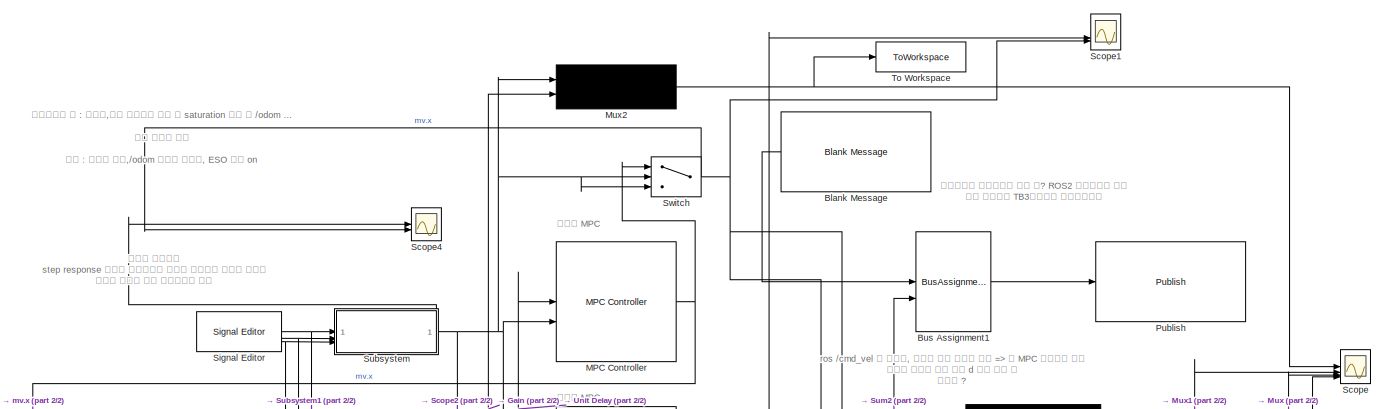
[diagram: root canvas - part 1/2, full width, top band]
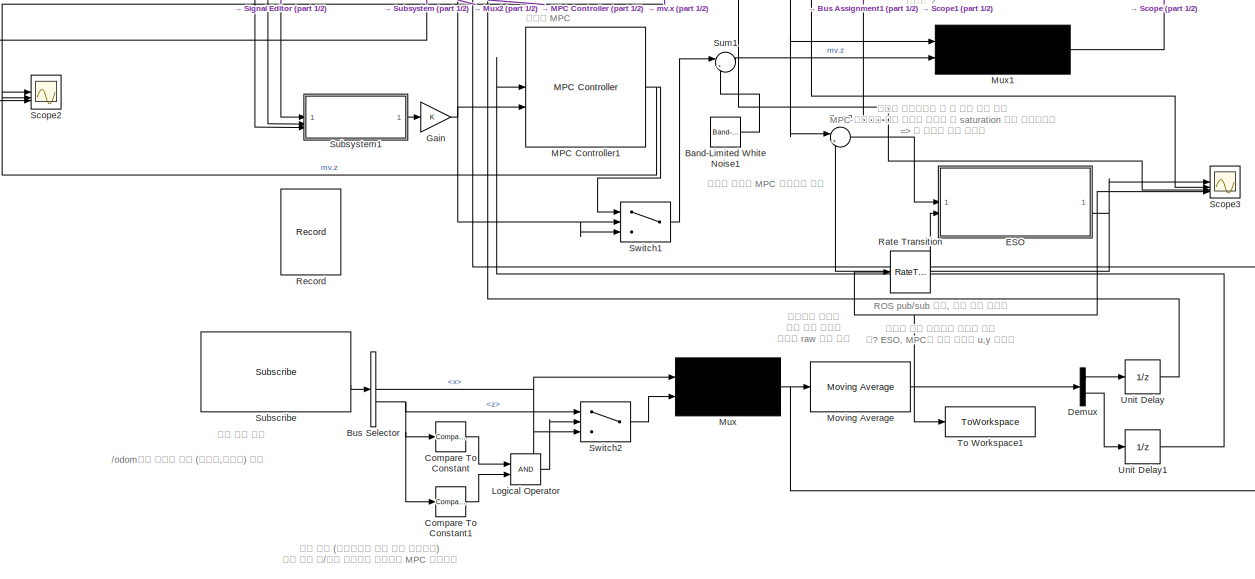
[diagram: root canvas - part 2/2, full width, bottom band]
MODEL slx_f93fa31c8e73
KIND model
CONFIG AbsTol = auto
CONFIG EnableMultiTasking = off
CONFIG FixedStep = auto
CONFIG MaxStep = auto
CONFIG MinStep = auto
CONFIG RelTol = 1e-3
CONFIG SampleTimeConstraint = Unconstrained
CONFIG SolverName = VariableStepAuto
CONFIG StartTime = 0.0
CONFIG StopTime = 45
BLOCK [Reference] Band-Limited White Noise1  REF=simulink/Sources/Band-Limited
White Noise
  SourceBlock = simulink/Sources/Band-Limited\nWhite Noise
  SourceType = Band-Limited White Noise.
BLOCK [Reference] Blank Message  REF=ros2lib/Blank Message  (lib defined in slx_3c1549211f48)
  SourceBlock = ros2lib/Blank Message
  SourceType = ROS2 Blank Message
BLOCK [BusAssignment] Bus Assignment1
  AssignedSignals = linear.x
BLOCK [BusSelector] Bus Selector
  OutputSignals = pose.pose.position.x,twist.twist.angular.z
BLOCK [Reference] Compare To Constant  REF=simulink/Logic and Bit
Operations/Compare
To Constant
  SourceBlock = simulink/Logic and Bit\nOperations/Compare\nTo Constant
  SourceType = Compare To Constant
BLOCK [Reference] Compare To Constant1  REF=simulink/Logic and Bit
Operations/Compare
To Constant
  SourceBlock = simulink/Logic and Bit\nOperations/Compare\nTo Constant
  SourceType = Compare To Constant
BLOCK [Demux] Demux
  DisplayOption = none
  Outputs = 2
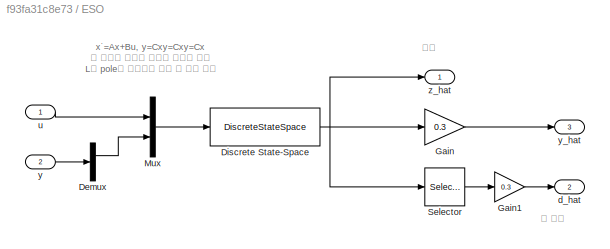
BLOCK [SubSystem] ESO
BLOCK [Demux] ESO/Demux
  Outputs = 2
BLOCK [DiscreteStateSpace] ESO/Discrete State-Space
  A = Aobs
  B = Bobs
  C = Cobs
  D = Dobs
  InitialCondition = z0
  SampleTime = Ts
BLOCK [Gain] ESO/Gain
  Gain = 0.3
  Multiplication = Matrix(K*u)
BLOCK [Gain] ESO/Gain1
  Gain = 0.3
BLOCK [Mux] ESO/Mux
  DisplayOption = signals
  Inputs = 2
BLOCK [Selector] ESO/Selector
  IndexOptions = Index vector (dialog)
  Indices = nx+1
  OutputSizes = 1
BLOCK [Outport] ESO/d_hat
  Port = 2
BLOCK [Inport] ESO/u
BLOCK [Inport] ESO/y
  Port = 2
BLOCK [Outport] ESO/y_hat
  Port = 3
BLOCK [Outport] ESO/z_hat
BLOCK [Gain] Gain
BLOCK [Logic] Logical Operator
  AllPortsSameDT = off
  OutDataTypeStr = boolean
BLOCK [Reference] MPC Controller  REF=mpclib/MPC Controller  (lib defined in mdl_ae329e0e0455)
  SCDEnableBlockLinearizationSpecification = on
  SourceBlock = mpclib/MPC Controller
  SourceType = MPC
BLOCK [Reference] MPC Controller1  REF=mpclib/MPC Controller  (lib defined in mdl_ae329e0e0455)
  SCDEnableBlockLinearizationSpecification = on
  SourceBlock = mpclib/MPC Controller
  SourceType = MPC
BLOCK [Reference] Moving Average  REF=dspstat3/Moving
Average
  SourceBlock = dspstat3/Moving\nAverage
  SourceType = dsp.simulink.MovingAverage
BLOCK [Mux] Mux
  DisplayOption = signals
  Inputs = 2
BLOCK [Mux] Mux1
  DisplayOption = signals
  Inputs = 2
BLOCK [Mux] Mux2
  DisplayOption = signals
  Inputs = 2
BLOCK [Reference] Publish  REF=ros2lib/Publish  (lib defined in slx_3c1549211f48)
  SourceBlock = ros2lib/Publish
  SourceType = ROS2 Publish
BLOCK [RateTransition] Rate Transition
  OutPortSampleTime = 0.05
BLOCK [Record] Record
  FileSettingsInternal = {"entries":[{"content":{"excelSettings":{"content":{},"type":"Streamout.ExcelSettings"}},"type":"Streamout.FileSettingStorage","uuid":""}],"packageUris":["http:\/\/schema.mathworks.com\/mf0\/streamout_blocks\/R2020a"],"version":"1.0"}
  SignalsInternal = {"entries":[{"content":{"signals":[{"content":{"blockPath":[],"dimensions":[1],"domain":"","lineColor":"#edb120","lineWidth":2,"plots":[ 1 ],"port":1,"sid":[""],"signalID":1},"type":"RecordBlkView.Signal","uuid":""}]},"type":"RecordBlkView.InputSignals","uuid":""}],"packageUris":["http:\/\/schema.mathworks.com\/mf0\/streamout_blocks\/R2020a"],"version":"1.0"}
  VisualizationBindings = {"sparklinesplugin":{"info":[{"bindingParametersList":[],"subplotID":1}]}}
BLOCK [Scope] Scope
  Floating = off
  NumInputPorts = 4
  ScopeSpecificationString = Simulink.scopes.TimeScopeBlockCfg('CurrentConfiguration', extmgr.ConfigurationSet(extmgr.Configuration('Core','General UI',true),extmgr.Configuration('Core','Source UI',true),extmgr.Configuration('Sources','WiredSimulink',true,'SampleTime','0.05'),extmgr.Configuration('Visuals','Time Domain',true,'SerializedDisplays',{struct('MinYLimReal','-2.07904','MaxYLimReal','2.11489','YLabelReal','','MinYLim...<+1553ch>
BLOCK [Scope] Scope1
  Floating = off
  NumInputPorts = 3
  ScopeSpecificationString = Simulink.scopes.TimeScopeBlockCfg('CurrentConfiguration', extmgr.ConfigurationSet(extmgr.Configuration('Core','General UI',true),extmgr.Configuration('Core','Source UI',true),extmgr.Configuration('Sources','WiredSimulink',true,'DataLoggingVariableName','ScopeData1'),extmgr.Configuration('Visuals','Time Domain',true,'SerializedDisplays',{struct('MinYLimReal','-0.00946','MaxYLimReal','0.27559','YLab...<+1603ch>
BLOCK [Scope] Scope2
  Floating = off
  NumInputPorts = 3
  ScopeSpecificationString = Simulink.scopes.TimeScopeBlockCfg('CurrentConfiguration', extmgr.ConfigurationSet(extmgr.Configuration('Core','General UI',true),extmgr.Configuration('Core','Source UI',true),extmgr.Configuration('Sources','WiredSimulink',true,'DataLoggingVariableName','ScopeData1'),extmgr.Configuration('Visuals','Time Domain',true,'SerializedDisplays',{struct('MinYLimReal','-0.23998','MaxYLimReal','2.15981','YLab...<+1610ch>
BLOCK [Scope] Scope3
  Floating = off
  NumInputPorts = 4
  ScopeSpecificationString = Simulink.scopes.TimeScopeBlockCfg('CurrentConfiguration', extmgr.ConfigurationSet(extmgr.Configuration('Core','General UI',true),extmgr.Configuration('Core','Source UI',true),extmgr.Configuration('Sources','WiredSimulink',true,'DataLoggingVariableName','ScopeData1','SampleTime','0.05'),extmgr.Configuration('Visuals','Time Domain',true,'SerializedDisplays',{struct('MinYLimReal','-0.21803','MaxYLimR...<+1686ch>
BLOCK [Scope] Scope4
  Floating = off
  NumInputPorts = 2
  ScopeSpecificationString = Simulink.scopes.TimeScopeBlockCfg('CurrentConfiguration', extmgr.ConfigurationSet(extmgr.Configuration('Core','General UI',true),extmgr.Configuration('Core','Source UI',true),extmgr.Configuration('Sources','WiredSimulink',true,'DataLoggingVariableName','ScopeData1'),extmgr.Configuration('Visuals','Time Domain',true,'SerializedDisplays',{struct('MinYLimReal','-0.025','MaxYLimReal','0.225','YLabelRe...<+1644ch>
BLOCK [Reference] Signal Editor  REF=SignalEditorBlockLib/Signal Editor
  LibrarySourceBlock = simulink/Sources/Signal Editor
  SourceBlock = SignalEditorBlockLib/Signal Editor
  SourceType = SignalEditor
  UserDataPersistent = on
BLOCK [Reference] Subscribe  REF=ros2lib/Subscribe  (lib defined in slx_3c1549211f48)
  SourceBlock = ros2lib/Subscribe
  SourceType = ROS2 Subscribe
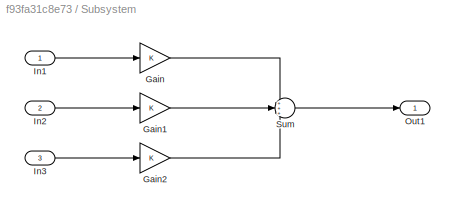
BLOCK [SubSystem] Subsystem
BLOCK [Gain] Subsystem/Gain
BLOCK [Gain] Subsystem/Gain1
BLOCK [Gain] Subsystem/Gain2
BLOCK [Inport] Subsystem/In1
BLOCK [Inport] Subsystem/In2
  Port = 2
BLOCK [Inport] Subsystem/In3
  Port = 3
BLOCK [Outport] Subsystem/Out1
BLOCK [Sum] Subsystem/Sum
  Inputs = +++
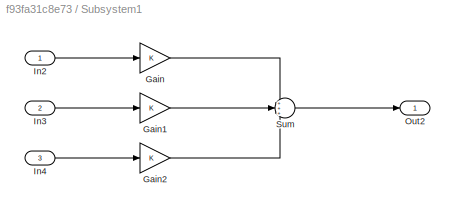
BLOCK [SubSystem] Subsystem1
BLOCK [Gain] Subsystem1/Gain
BLOCK [Gain] Subsystem1/Gain1
BLOCK [Gain] Subsystem1/Gain2
BLOCK [Inport] Subsystem1/In2
BLOCK [Inport] Subsystem1/In3
  Port = 2
BLOCK [Inport] Subsystem1/In4
  Port = 3
BLOCK [Outport] Subsystem1/Out2
BLOCK [Sum] Subsystem1/Sum
  Inputs = +++
BLOCK [Sum] Sum1
  Inputs = |++
BLOCK [Sum] Sum2
  Inputs = |+-
BLOCK [Switch] Switch
  Criteria = u2 > Threshold
  InputSameDT = off
  SaturateOnIntegerOverflow = off
BLOCK [Switch] Switch1
  InputSameDT = off
  SaturateOnIntegerOverflow = off
BLOCK [Switch] Switch2
  Criteria = u2 > Threshold
  OutDataTypeStr = double
  SaturateOnIntegerOverflow = off
BLOCK [ToWorkspace] To Workspace
  FixptAsFi = on
  MaxDataPoints = inf
  SampleTime = -1
  SaveFormat = Timeseries
  VariableName = simout
BLOCK [ToWorkspace] To Workspace1
  FixptAsFi = on
  MaxDataPoints = inf
  SampleTime = -1
  SaveFormat = Timeseries
  VariableName = simout1
BLOCK [UnitDelay] Unit Delay
  HasFrameUpgradeWarning = on
  SampleTime = -1
BLOCK [UnitDelay] Unit Delay1
  HasFrameUpgradeWarning = on
  SampleTime = -1
ANNOTATION (root): /odom에서 필요한 필드 (선속도,각속도) 선택
ANNOTATION (root): ROS pub/sub 주기, 필터 지연 때문에 생기는 샘플 어긋남을 맞추는 용도 왜? ESO, MPC가 동일 시각의 u,y 보도록
ANNOTATION (root): ros /cmd_vel 은 선속도, 각속도 명령 동시에 보냄 => 두 MPC 명령어를 묶고 벡터로 만들어 외란 보상 d 등을 더한 뒤 클러핑 ?
ANNOTATION (root): 각속도 MPC
ANNOTATION (root): 그래프용 스무딩 제어 루프 안쪽은 가급적 raw 신호 사용
ANNOTATION (root): 로봇이 물리적으로 낼 수 없는 명령 제한 MPC 내부에도 제약 있으면 외부의 이 saturation 값과 맞추어야함 => 안 맞으면 성능 떨어짐
ANNOTATION (root): 범위 검증 (물리적으로 말이 되는 범위인지) 센서 튀는 값/끊긴 프레임이 들어오면 MPC 오작동함
ANNOTATION (root): 선속도 MPC
ANNOTATION (root): 시뮬레이션 시 : 노이즈,외란 프로파일 켜기 및 saturation 유지 및 /odom 대신 플랜트 모델 실제 : 노이즈 끄기,/odom 게이트 활성화, ESO 보상 on
ANNOTATION (root): 실제 속도 추출
ANNOTATION (root): 추정된 외란을 MPC 명령에서 뺀다
ANNOTATION (root): 테스트 시나리오 step response 만들고 컨트롤러가 따라갈 레퍼런스 궤적을 만들고 케이스 바꾸며 성능 검증하는데 이용
ANNOTATION (root): 패키징해서 실로봇으로 송신 왜? ROS2 네트워크를 통해 표준 메시지로 TB3에게명령 전달하기위함
ANNOTATION ESO: x˙=Ax+Bu, y=Cxy=Cxy=Cx 이 모델을 확장해 외란을 상태로 포함 L로 pole을 배치하여 외란 및 상태 추정
ANNOTATION ESO: 상태
ANNOTATION ESO: 총 외란
LINE Band-Limited White Noise1:1 -> Sum1:2
LINE Blank Message:1 -> Bus Assignment1:1
LINE Bus Assignment1:1 -> Publish:1
NET Bus Selector:1 -> Mux:1, Switch2:3
NET Bus Selector:2 -> Compare To Constant1:1, Compare To Constant:1, Switch2:1
LINE Compare To Constant1:1 -> Logical Operator:2
LINE Compare To Constant:1 -> Logical Operator:1
LINE Demux:1 -> Unit Delay:1
LINE Demux:2 -> Unit Delay1:1
LINE ESO/Demux:1 -> ESO/Mux:2
NET ESO/Discrete State-Space:1 -> ESO/Gain:1, ESO/Selector:1, ESO/z_hat:1
LINE ESO/Gain1:1 -> ESO/d_hat:1
LINE ESO/Gain:1 -> ESO/y_hat:1
LINE ESO/Mux:1 -> ESO/Discrete State-Space:1
LINE ESO/Selector:1 -> ESO/Gain1:1
LINE ESO/u:1 -> ESO/Mux:1
LINE ESO/y:1 -> ESO/Demux:1
NET ESO:2 -> Scope3:1, Sum2:2
NET Gain:1 -> MPC Controller1:2, Mux2:2, Switch1:2, Switch1:3
LINE Logical Operator:1 -> Switch2:2
NET MPC Controller1:1 -> Scope2:2, Switch1:1
NET MPC Controller:1 -> Scope2:1, Switch:1
NET Moving Average:1 -> Demux:1, Rate Transition:1, Scope3:4, To Workspace1:1
LINE Mux1:1 -> Scope:2
NET Mux2:1 -> Scope:1, To Workspace:1
NET Mux:1 -> Moving Average:1, Scope:3
LINE Rate Transition:1 -> ESO:2
NET Signal Editor:1 -> Subsystem1:1, Subsystem:1
NET Signal Editor:2 -> Subsystem1:2, Subsystem:2
NET Signal Editor:3 -> Subsystem1:3, Subsystem:3
LINE Subscribe:2 -> Bus Selector:1
LINE Subsystem/Gain1:1 -> Subsystem/Sum:2
LINE Subsystem/Gain2:1 -> Subsystem/Sum:3
LINE Subsystem/Gain:1 -> Subsystem/Sum:1
LINE Subsystem/In1:1 -> Subsystem/Gain:1
LINE Subsystem/In2:1 -> Subsystem/Gain1:1
LINE Subsystem/In3:1 -> Subsystem/Gain2:1
LINE Subsystem/Sum:1 -> Subsystem/Out1:1
LINE Subsystem1/Gain1:1 -> Subsystem1/Sum:2
LINE Subsystem1/Gain2:1 -> Subsystem1/Sum:3
LINE Subsystem1/Gain:1 -> Subsystem1/Sum:1
LINE Subsystem1/In2:1 -> Subsystem1/Gain:1
LINE Subsystem1/In3:1 -> Subsystem1/Gain1:1
LINE Subsystem1/In4:1 -> Subsystem1/Gain2:1
LINE Subsystem1/Sum:1 -> Subsystem1/Out2:1
LINE Subsystem1:1 -> Gain:1
NET Subsystem:1 -> MPC Controller:2, Mux2:1, Scope2:3, Scope4:1, Scope:4, Switch:2, Switch:3
LINE Sum1:1 -> Mux1:2
NET Sum2:1 -> Bus Assignment1:2, ESO:1, Scope1:2, Scope3:3
LINE Switch1:1 -> Sum1:1
LINE Switch2:1 -> Mux:2
NET Switch:1 -> Mux1:1, Scope1:3, Scope3:2, Scope4:2, Sum2:1
LINE Unit Delay1:1 -> MPC Controller1:1
LINE Unit Delay:1 -> MPC Controller:1
note: NET lines group one-source signal fan-out (src -> all destinations, sorted); 1:1 wires keep LINE
